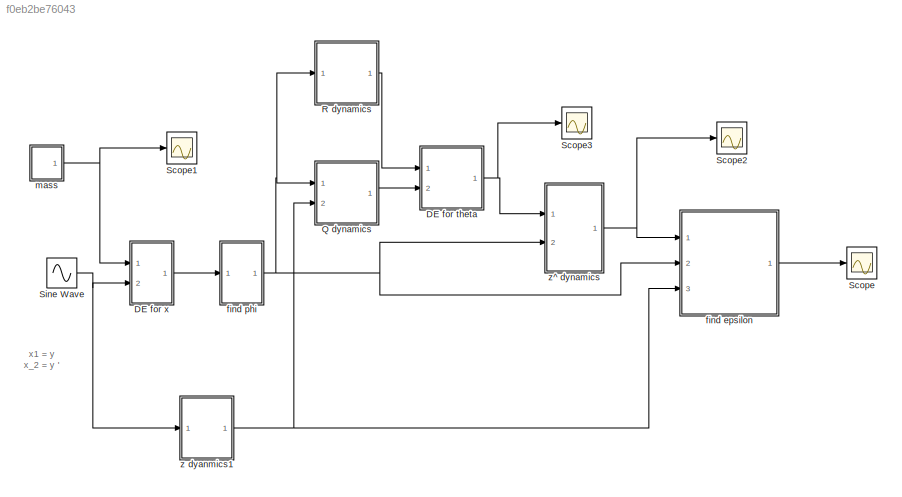
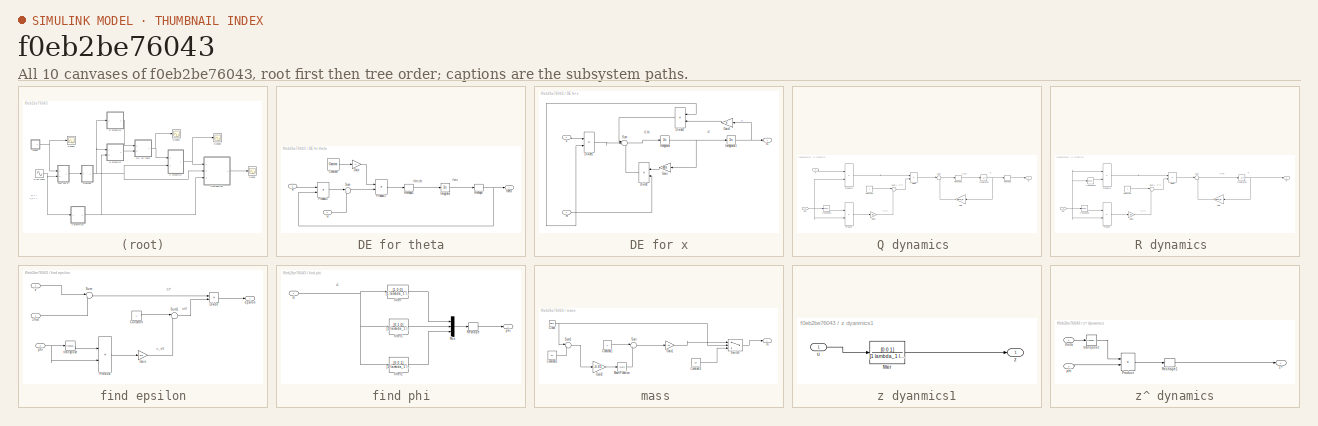
[diagram: thumbnail index - all 10 canvases of the model, root first then tree order]
MODEL slx_f0eb2be76043
KIND model
CONFIG AbsTol = auto
CONFIG EnableMultiTasking = off
CONFIG FixedStep = 0.001
CONFIG MaxStep = auto
CONFIG MinStep = auto
CONFIG RelTol = 1e-3
CONFIG SampleTimeConstraint = Unconstrained
CONFIG Solver = ode4
CONFIG SolverName = ode4
CONFIG StartTime = 0.0
CONFIG StopTime = 500.0
BLOCK [SubSystem] DE for theta
  Ports = [2, 1]
  RequestExecContextInheritance = off
  Variant = off
BLOCK [Constant] DE for theta/Constant
  Value = Gamma
  VectorParams1D = off
BLOCK [Gain] DE for theta/Gain
  Gain = -1
  OutDataTypeStr = Inherit: Inherit via internal rule
  ParamDataTypeStr = Inherit: Inherit via internal rule
  SaturateOnIntegerOverflow = off
BLOCK [Integrator] DE for theta/Integrator
  Ports = [1, 1]
BLOCK [Product] DE for theta/Product1
  InputSameDT = off
  Multiplication = Matrix(*)
  OutDataTypeStr = Inherit: Inherit via internal rule
  Ports = [2, 1]
  RndMeth = Floor
  SaturateOnIntegerOverflow = off
BLOCK [Product] DE for theta/Product2
  InputSameDT = off
  Multiplication = Matrix(*)
  OutDataTypeStr = Inherit: Inherit via internal rule
  Ports = [2, 1]
  RndMeth = Floor
  SaturateOnIntegerOverflow = off
BLOCK [Inport] DE for theta/Q
  IconDisplay = Port number
  Port = 2
BLOCK [Inport] DE for theta/R 
  IconDisplay = Port number
BLOCK [Reshape] DE for theta/Reshape
  OutputDimensionality = Column vector (2-D)
  Ports = [1, 1]
BLOCK [Reshape] DE for theta/Reshape1
  OutputDimensionality = Column vector (2-D)
  Ports = [1, 1]
BLOCK [Sum] DE for theta/Sum
  IconShape = round
  InputSameDT = off
  Inputs = |++
  OutDataTypeStr = Inherit: Inherit via internal rule
  Ports = [2, 1]
  SaturateOnIntegerOverflow = off
BLOCK [Outport] DE for theta/theta 
  IconDisplay = Port number
BLOCK [SubSystem] DE for x
  Ports = [2, 1]
  RequestExecContextInheritance = off
  Variant = off
BLOCK [Product] DE for x/Divide
  InputSameDT = off
  Inputs = */
  OutDataTypeStr = Inherit: Inherit via internal rule
  Ports = [2, 1]
  RndMeth = Floor
  SaturateOnIntegerOverflow = off
BLOCK [Product] DE for x/Divide1
  InputSameDT = off
  Inputs = */
  OutDataTypeStr = Inherit: Inherit via internal rule
  Ports = [2, 1]
  RndMeth = Floor
  SaturateOnIntegerOverflow = off
BLOCK [Product] DE for x/Divide2
  InputSameDT = off
  Inputs = /*
  OutDataTypeStr = Inherit: Inherit via internal rule
  Ports = [2, 1]
  RndMeth = Floor
  SaturateOnIntegerOverflow = off
BLOCK [Gain] DE for x/Gain
  Gain = beta
  OutDataTypeStr = Inherit: Inherit via internal rule
  ParamDataTypeStr = Inherit: Inherit via internal rule
  SaturateOnIntegerOverflow = off
BLOCK [Gain] DE for x/Gain1
  Gain = k
  OutDataTypeStr = Inherit: Inherit via internal rule
  ParamDataTypeStr = Inherit: Inherit via internal rule
  SaturateOnIntegerOverflow = off
BLOCK [Integrator] DE for x/Integrator
  Ports = [1, 1]
BLOCK [Integrator] DE for x/Integrator1
  Ports = [1, 1]
BLOCK [Sum] DE for x/Sum
  IconShape = round
  InputSameDT = off
  Inputs = |-+-
  OutDataTypeStr = Inherit: Inherit via internal rule
  Ports = [3, 1]
  SaturateOnIntegerOverflow = off
BLOCK [Inport] DE for x/m 
  IconDisplay = Port number
BLOCK [Inport] DE for x/u
  IconDisplay = Port number
  Port = 2
BLOCK [Outport] DE for x/x1 
  IconDisplay = Port number
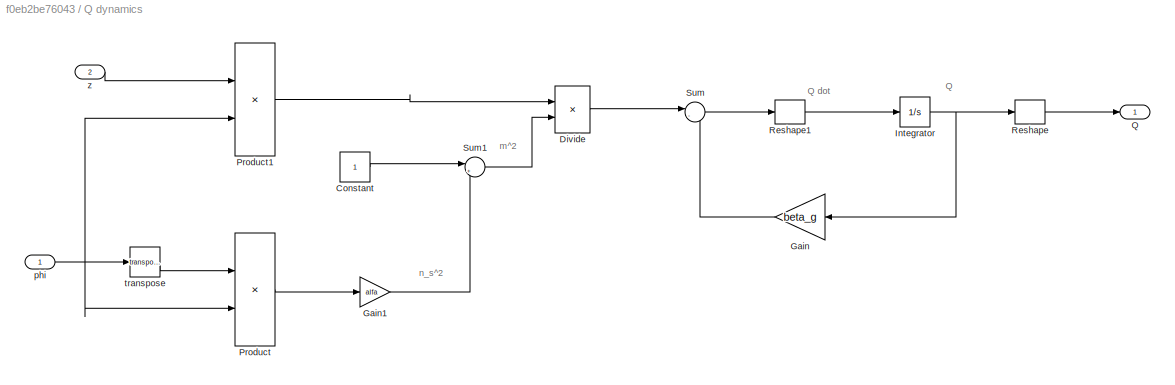
BLOCK [SubSystem] Q dynamics 
  Ports = [2, 1]
  RequestExecContextInheritance = off
  Variant = off
BLOCK [Constant] Q dynamics /Constant
BLOCK [Product] Q dynamics /Divide
  InputSameDT = off
  Inputs = */
  OutDataTypeStr = Inherit: Inherit via internal rule
  Ports = [2, 1]
  RndMeth = Floor
  SaturateOnIntegerOverflow = off
BLOCK [Gain] Q dynamics /Gain
  Gain = beta_g
  OutDataTypeStr = Inherit: Inherit via internal rule
  ParamDataTypeStr = Inherit: Inherit via internal rule
  SaturateOnIntegerOverflow = off
BLOCK [Gain] Q dynamics /Gain1
  Gain = alfa
  OutDataTypeStr = Inherit: Inherit via internal rule
  ParamDataTypeStr = Inherit: Inherit via internal rule
  SaturateOnIntegerOverflow = off
BLOCK [Integrator] Q dynamics /Integrator
  Ports = [1, 1]
BLOCK [Product] Q dynamics /Product
  InputSameDT = off
  Multiplication = Matrix(*)
  OutDataTypeStr = Inherit: Inherit via internal rule
  Ports = [2, 1]
  RndMeth = Floor
  SaturateOnIntegerOverflow = off
BLOCK [Product] Q dynamics /Product1
  InputSameDT = off
  OutDataTypeStr = Inherit: Inherit via internal rule
  Ports = [2, 1]
  RndMeth = Floor
  SaturateOnIntegerOverflow = off
BLOCK [Outport] Q dynamics /Q
  IconDisplay = Port number
BLOCK [Reshape] Q dynamics /Reshape
  OutputDimensionality = Column vector (2-D)
  Ports = [1, 1]
BLOCK [Reshape] Q dynamics /Reshape1
  OutputDimensionality = Column vector (2-D)
  Ports = [1, 1]
BLOCK [Sum] Q dynamics /Sum
  IconShape = round
  InputSameDT = off
  Inputs = |--
  OutDataTypeStr = Inherit: Inherit via internal rule
  Ports = [2, 1]
  SaturateOnIntegerOverflow = off
BLOCK [Sum] Q dynamics /Sum1
  IconShape = round
  InputSameDT = off
  Inputs = |++
  OutDataTypeStr = Inherit: Inherit via internal rule
  Ports = [2, 1]
  SaturateOnIntegerOverflow = off
BLOCK [Inport] Q dynamics /phi
  IconDisplay = Port number
BLOCK [Math] Q dynamics /transpose
  Operator = transpose
  Ports = [1, 1]
BLOCK [Inport] Q dynamics /z 
  IconDisplay = Port number
  Port = 2
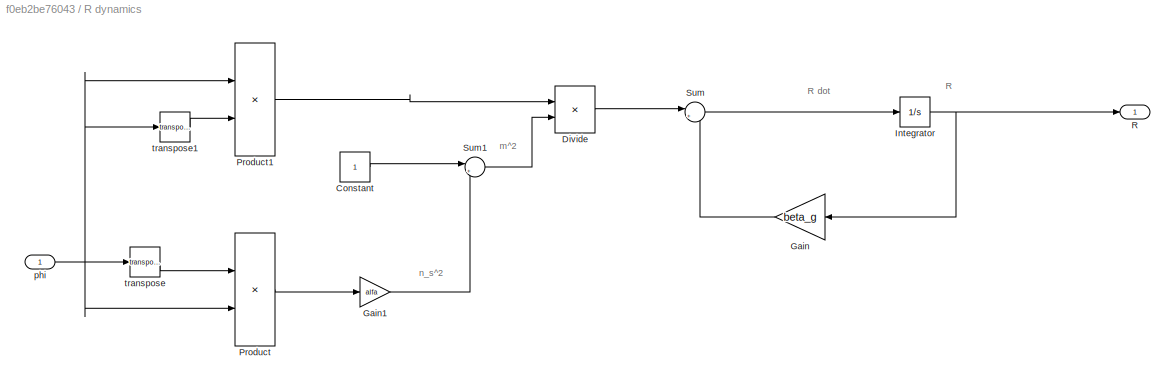
BLOCK [SubSystem] R dynamics 
  Ports = [1, 1]
  RequestExecContextInheritance = off
  Variant = off
BLOCK [Constant] R dynamics /Constant
BLOCK [Product] R dynamics /Divide
  InputSameDT = off
  Inputs = */
  OutDataTypeStr = Inherit: Inherit via internal rule
  Ports = [2, 1]
  RndMeth = Floor
  SaturateOnIntegerOverflow = off
BLOCK [Gain] R dynamics /Gain
  Gain = beta_g
  OutDataTypeStr = Inherit: Inherit via internal rule
  ParamDataTypeStr = Inherit: Inherit via internal rule
  SaturateOnIntegerOverflow = off
BLOCK [Gain] R dynamics /Gain1
  Gain = alfa
  OutDataTypeStr = Inherit: Inherit via internal rule
  ParamDataTypeStr = Inherit: Inherit via internal rule
  SaturateOnIntegerOverflow = off
BLOCK [Integrator] R dynamics /Integrator
  Ports = [1, 1]
BLOCK [Product] R dynamics /Product
  InputSameDT = off
  Multiplication = Matrix(*)
  OutDataTypeStr = Inherit: Inherit via internal rule
  Ports = [2, 1]
  RndMeth = Floor
  SaturateOnIntegerOverflow = off
BLOCK [Product] R dynamics /Product1
  InputSameDT = off
  Multiplication = Matrix(*)
  OutDataTypeStr = Inherit: Inherit via internal rule
  Ports = [2, 1]
  RndMeth = Floor
  SaturateOnIntegerOverflow = off
BLOCK [Outport] R dynamics /R 
  IconDisplay = Port number
BLOCK [Sum] R dynamics /Sum
  IconShape = round
  InputSameDT = off
  Inputs = |+-
  OutDataTypeStr = Inherit: Inherit via internal rule
  Ports = [2, 1]
  SaturateOnIntegerOverflow = off
BLOCK [Sum] R dynamics /Sum1
  IconShape = round
  InputSameDT = off
  Inputs = |++
  OutDataTypeStr = Inherit: Inherit via internal rule
  Ports = [2, 1]
  SaturateOnIntegerOverflow = off
BLOCK [Inport] R dynamics /phi
  IconDisplay = Port number
BLOCK [Math] R dynamics /transpose
  Operator = transpose
  Ports = [1, 1]
BLOCK [Math] R dynamics /transpose1
  Operator = transpose
  Ports = [1, 1]
BLOCK [Scope] Scope
  NumInputPorts = 1
  Ports = [1]
  ScopeSpecificationString = Simulink.scopes.TimeScopeBlockCfg('CurrentConfiguration', extmgr.ConfigurationSet(extmgr.Configuration('Core','General UI',true),extmgr.Configuration('Core','Source UI',true),extmgr.Configuration('Sources','WiredSimulink',true),extmgr.Configuration('Visuals','Time Domain',true,'SerializedDisplays',{struct('MinYLimReal','-1.60838','MaxYLimReal','0.96767','YLabelReal','','MinYLimMag','0.00000','MaxY...<+1405ch>
BLOCK [Scope] Scope1
  NumInputPorts = 1
  Ports = [1]
  ScopeSpecificationString = Simulink.scopes.TimeScopeBlockCfg('CurrentConfiguration', extmgr.ConfigurationSet(extmgr.Configuration('Core','General UI',true),extmgr.Configuration('Core','Source UI',true),extmgr.Configuration('Sources','WiredSimulink',true,'DataLoggingVariableName','ScopeData1'),extmgr.Configuration('Visuals','Time Domain',true,'SerializedDisplays',{struct('MinYLimReal','-1.24668','MaxYLimReal','1.24634','YLab...<+1370ch>
BLOCK [Scope] Scope2
  NumInputPorts = 1
  Ports = [1]
  ScopeSpecificationString = Simulink.scopes.TimeScopeBlockCfg('CurrentConfiguration', extmgr.ConfigurationSet(extmgr.Configuration('Core','General UI',true),extmgr.Configuration('Core','Source UI',true),extmgr.Configuration('Sources','WiredSimulink',true,'DataLoggingVariableName','ScopeData2'),extmgr.Configuration('Visuals','Time Domain',true,'SerializedDisplays',{struct('MinYLimReal','-1.24668','MaxYLimReal','1.24634','YLab...<+1370ch>
BLOCK [Scope] Scope3
  NumInputPorts = 1
  Ports = [1]
  ScopeSpecificationString = Simulink.scopes.TimeScopeBlockCfg('CurrentConfiguration', extmgr.ConfigurationSet(extmgr.Configuration('Core','General UI',true),extmgr.Configuration('Core','Source UI',true),extmgr.Configuration('Sources','WiredSimulink',true,'DataLoggingVariableName','ScopeData3'),extmgr.Configuration('Visuals','Time Domain',true,'SerializedDisplays',{struct('MinYLimReal','-6.91259','MaxYLimReal','44.89607','YLa...<+1411ch>
BLOCK [Sin] Sine Wave
  Amplitude = 5
  Phase = 0.3
  Ports = [0, 1]
  SampleTime = 0
BLOCK [SubSystem] find epsilon
  Ports = [3, 1]
  RequestExecContextInheritance = off
  Variant = off
BLOCK [Constant] find epsilon/Constant
BLOCK [Product] find epsilon/Divide
  InputSameDT = off
  Inputs = */
  Multiplication = Matrix(*)
  OutDataTypeStr = Inherit: Inherit via internal rule
  Ports = [2, 1]
  RndMeth = Floor
  SaturateOnIntegerOverflow = off
BLOCK [Gain] find epsilon/Gain
  Gain = alfa
  OutDataTypeStr = Inherit: Inherit via internal rule
  ParamDataTypeStr = Inherit: Inherit via internal rule
  SaturateOnIntegerOverflow = off
BLOCK [Product] find epsilon/Product
  InputSameDT = off
  Multiplication = Matrix(*)
  OutDataTypeStr = Inherit: Inherit via internal rule
  Ports = [2, 1]
  RndMeth = Floor
  SaturateOnIntegerOverflow = off
BLOCK [Sum] find epsilon/Sum
  IconShape = round
  InputSameDT = off
  Inputs = |+-
  OutDataTypeStr = Inherit: Inherit via internal rule
  Ports = [2, 1]
  SaturateOnIntegerOverflow = off
BLOCK [Sum] find epsilon/Sum1
  IconShape = round
  InputSameDT = off
  Inputs = |++
  OutDataTypeStr = Inherit: Inherit via internal rule
  Ports = [2, 1]
  SaturateOnIntegerOverflow = off
BLOCK [Outport] find epsilon/epsilon 
  IconDisplay = Port number
BLOCK [Inport] find epsilon/phi
  IconDisplay = Port number
  Port = 2
BLOCK [Math] find epsilon/transpose
  Operator = transpose
  Ports = [1, 1]
BLOCK [Inport] find epsilon/z
  IconDisplay = Port number
  Port = 3
BLOCK [Inport] find epsilon/z hat
  IconDisplay = Port number
BLOCK [SubSystem] find phi
  Ports = [1, 1]
  RequestExecContextInheritance = off
  Variant = off
BLOCK [Mux] find phi/Mux
  DisplayOption = bar
  Inputs = 3
  Ports = [3, 1]
BLOCK [Reshape] find phi/Reshape
  OutputDimensionality = Column vector (2-D)
  Ports = [1, 1]
BLOCK [TransferFcn] find phi/filter
  Denominator = [1 lambda_1 lambda_0]
  Numerator = [1 0 0]
BLOCK [TransferFcn] find phi/filter1
  Denominator = [1 lambda_1 lambda_0]
  Numerator = [0 1 0]
BLOCK [TransferFcn] find phi/filter2
  Denominator = [1 lambda_1 lambda_0]
  Numerator = [0 0 1]
BLOCK [Outport] find phi/phi 
  IconDisplay = Port number
BLOCK [Inport] find phi/x1
  IconDisplay = Port number
BLOCK [SubSystem] mass 
  Ports = [0, 1]
  RequestExecContextInheritance = off
  Variant = off
BLOCK [Clock] mass /Clock
BLOCK [Constant] mass /Constant1
  Value = 2
BLOCK [Constant] mass /Constant2
  Value = 20
BLOCK [Constant] mass /Constant3
  Value = 20
BLOCK [Gain] mass /Gain1
  Gain = 20
  OutDataTypeStr = Inherit: Inherit via internal rule
  ParamDataTypeStr = Inherit: Inherit via internal rule
  SaturateOnIntegerOverflow = off
BLOCK [Gain] mass /Gain2
  Gain = -0.01
  OutDataTypeStr = Inherit: Inherit via internal rule
  ParamDataTypeStr = Inherit: Inherit via internal rule
  SaturateOnIntegerOverflow = off
BLOCK [Math] mass /Math Function
  Ports = [1, 1]
BLOCK [Sum] mass /Sum
  IconShape = round
  InputSameDT = off
  Inputs = |+-
  OutDataTypeStr = Inherit: Inherit via internal rule
  Ports = [2, 1]
  SaturateOnIntegerOverflow = off
BLOCK [Sum] mass /Sum1
  IconShape = round
  InputSameDT = off
  Inputs = |+-
  OutDataTypeStr = Inherit: Inherit via internal rule
  Ports = [2, 1]
  SaturateOnIntegerOverflow = off
BLOCK [Switch] mass /Switch
  InputSameDT = off
  SaturateOnIntegerOverflow = off
  Threshold = 20
BLOCK [Outport] mass /m
  IconDisplay = Port number
BLOCK [SubSystem] z dyanmics1
  Ports = [1, 1]
  RequestExecContextInheritance = off
  Variant = off
BLOCK [TransferFcn] z dyanmics1/filter
  Denominator = [1 lambda_1 lambda_0]
  Numerator = [0 0 1]
BLOCK [Inport] z dyanmics1/u
  IconDisplay = Port number
BLOCK [Outport] z dyanmics1/z 
  IconDisplay = Port number
BLOCK [SubSystem] z^ dynamics
  Ports = [2, 1]
  RequestExecContextInheritance = off
  Variant = off
BLOCK [Product] z^ dynamics/Product
  InputSameDT = off
  Multiplication = Matrix(*)
  OutDataTypeStr = Inherit: Inherit via internal rule
  Ports = [2, 1]
  RndMeth = Floor
  SaturateOnIntegerOverflow = off
BLOCK [Reshape] z^ dynamics/Reshape1
  OutputDimensionality = Column vector (2-D)
  Ports = [1, 1]
BLOCK [Inport] z^ dynamics/phi
  IconDisplay = Port number
  Port = 2
BLOCK [Inport] z^ dynamics/theta
  IconDisplay = Port number
BLOCK [Math] z^ dynamics/transpose
  Operator = transpose
  Ports = [1, 1]
BLOCK [Outport] z^ dynamics/z^ 
  IconDisplay = Port number
ANNOTATION (root): x1 = y x_2 = y '
ANNOTATION DE for theta: theta
ANNOTATION DE for theta: theta dot
ANNOTATION DE for x: x2
ANNOTATION DE for x: x2 dot
ANNOTATION Q dynamics : Q
ANNOTATION Q dynamics : Q dot
ANNOTATION Q dynamics : m^2
ANNOTATION Q dynamics : n_s^2
ANNOTATION R dynamics : R
ANNOTATION R dynamics : R dot
ANNOTATION R dynamics : m^2
ANNOTATION R dynamics : n_s^2
ANNOTATION find epsilon: m^2
ANNOTATION find epsilon: n_s^2
ANNOTATION find epsilon: z-z^
ANNOTATION find phi: x1
LINE DE for theta/Constant:1 -> DE for theta/Gain:1
LINE DE for theta/Gain:1 -> DE for theta/Product1:1
LINE DE for theta/Integrator:1 -> DE for theta/Reshape:1
LINE DE for theta/Product1:1 -> DE for theta/Reshape1:1
LINE DE for theta/Product2:1 -> DE for theta/Sum:1
LINE DE for theta/Q:1 -> DE for theta/Sum:2
LINE DE for theta/R :1 -> DE for theta/Product2:1
LINE DE for theta/Reshape1:1 -> DE for theta/Integrator:1
NET DE for theta/Reshape:1 -> DE for theta/Product2:2, DE for theta/theta :1
LINE DE for theta/Sum:1 -> DE for theta/Product1:2
NET DE for theta:1 -> Scope3:1, z^ dynamics:1
LINE DE for x/Divide1:1 -> DE for x/Sum:2
LINE DE for x/Divide2:1 -> DE for x/Sum:1
LINE DE for x/Divide:1 -> DE for x/Sum:3
LINE DE for x/Gain1:1 -> DE for x/Divide2:2
LINE DE for x/Gain:1 -> DE for x/Divide:1
NET DE for x/Integrator1:1 -> DE for x/Gain1:1, DE for x/x1 :1
NET DE for x/Integrator:1 -> DE for x/Gain:1, DE for x/Integrator1:1
LINE DE for x/Sum:1 -> DE for x/Integrator:1
NET DE for x/m :1 -> DE for x/Divide1:2, DE for x/Divide2:1, DE for x/Divide:2
LINE DE for x/u:1 -> DE for x/Divide1:1
LINE DE for x:1 -> find phi:1
LINE Q dynamics /Constant:1 -> Q dynamics /Sum1:1
LINE Q dynamics /Divide:1 -> Q dynamics /Sum:1
LINE Q dynamics /Gain1:1 -> Q dynamics /Sum1:2
LINE Q dynamics /Gain:1 -> Q dynamics /Sum:2
NET Q dynamics /Integrator:1 -> Q dynamics /Gain:1, Q dynamics /Reshape:1
LINE Q dynamics /Product1:1 -> Q dynamics /Divide:1
LINE Q dynamics /Product:1 -> Q dynamics /Gain1:1
LINE Q dynamics /Reshape1:1 -> Q dynamics /Integrator:1
LINE Q dynamics /Reshape:1 -> Q dynamics /Q:1
LINE Q dynamics /Sum1:1 -> Q dynamics /Divide:2
LINE Q dynamics /Sum:1 -> Q dynamics /Reshape1:1
NET Q dynamics /phi:1 -> Q dynamics /Product1:2, Q dynamics /Product:2, Q dynamics /transpose:1
LINE Q dynamics /transpose:1 -> Q dynamics /Product:1
LINE Q dynamics /z :1 -> Q dynamics /Product1:1
LINE Q dynamics :1 -> DE for theta:2
LINE R dynamics /Constant:1 -> R dynamics /Sum1:1
LINE R dynamics /Divide:1 -> R dynamics /Sum:1
LINE R dynamics /Gain1:1 -> R dynamics /Sum1:2
LINE R dynamics /Gain:1 -> R dynamics /Sum:2
NET R dynamics /Integrator:1 -> R dynamics /Gain:1, R dynamics /R :1
LINE R dynamics /Product1:1 -> R dynamics /Divide:1
LINE R dynamics /Product:1 -> R dynamics /Gain1:1
LINE R dynamics /Sum1:1 -> R dynamics /Divide:2
LINE R dynamics /Sum:1 -> R dynamics /Integrator:1
NET R dynamics /phi:1 -> R dynamics /Product1:1, R dynamics /Product:2, R dynamics /transpose1:1, R dynamics /transpose:1
LINE R dynamics /transpose1:1 -> R dynamics /Product1:2
LINE R dynamics /transpose:1 -> R dynamics /Product:1
LINE R dynamics :1 -> DE for theta:1
NET Sine Wave:1 -> DE for x:2, z dyanmics1:1
LINE find epsilon/Constant:1 -> find epsilon/Sum1:1
LINE find epsilon/Divide:1 -> find epsilon/epsilon :1
LINE find epsilon/Gain:1 -> find epsilon/Sum1:2
LINE find epsilon/Product:1 -> find epsilon/Gain:1
LINE find epsilon/Sum1:1 -> find epsilon/Divide:2
LINE find epsilon/Sum:1 -> find epsilon/Divide:1
NET find epsilon/phi:1 -> find epsilon/Product:2, find epsilon/transpose:1
LINE find epsilon/transpose:1 -> find epsilon/Product:1
LINE find epsilon/z hat:1 -> find epsilon/Sum:2
LINE find epsilon/z:1 -> find epsilon/Sum:1
LINE find epsilon:1 -> Scope:1
LINE find phi/Mux:1 -> find phi/Reshape:1
LINE find phi/Reshape:1 -> find phi/phi :1
LINE find phi/filter1:1 -> find phi/Mux:2
LINE find phi/filter2:1 -> find phi/Mux:3
LINE find phi/filter:1 -> find phi/Mux:1
NET find phi/x1:1 -> find phi/filter1:1, find phi/filter2:1, find phi/filter:1
NET find phi:1 -> Q dynamics :1, R dynamics :1, find epsilon:2, z^ dynamics:2
NET mass /Clock:1 -> mass /Sum1:1, mass /Switch:2
LINE mass /Constant1:1 -> mass /Sum:1
LINE mass /Constant2:1 -> mass /Sum1:2
LINE mass /Constant3:1 -> mass /Switch:3
LINE mass /Gain1:1 -> mass /Switch:1
LINE mass /Gain2:1 -> mass /Math Function:1
LINE mass /Math Function:1 -> mass /Sum:2
LINE mass /Sum1:1 -> mass /Gain2:1
LINE mass /Sum:1 -> mass /Gain1:1
LINE mass /Switch:1 -> mass /m:1
NET mass :1 -> DE for x:1, Scope1:1
LINE z dyanmics1/filter:1 -> z dyanmics1/z :1
LINE z dyanmics1/u:1 -> z dyanmics1/filter:1
NET z dyanmics1:1 -> Q dynamics :2, find epsilon:3
LINE z^ dynamics/Product:1 -> z^ dynamics/Reshape1:1
LINE z^ dynamics/Reshape1:1 -> z^ dynamics/z^ :1
LINE z^ dynamics/phi:1 -> z^ dynamics/Product:2
LINE z^ dynamics/theta:1 -> z^ dynamics/transpose:1
LINE z^ dynamics/transpose:1 -> z^ dynamics/Product:1
NET z^ dynamics:1 -> Scope2:1, find epsilon:1
note: NET lines group one-source signal fan-out (src -> all destinations, sorted); 1:1 wires keep LINE
